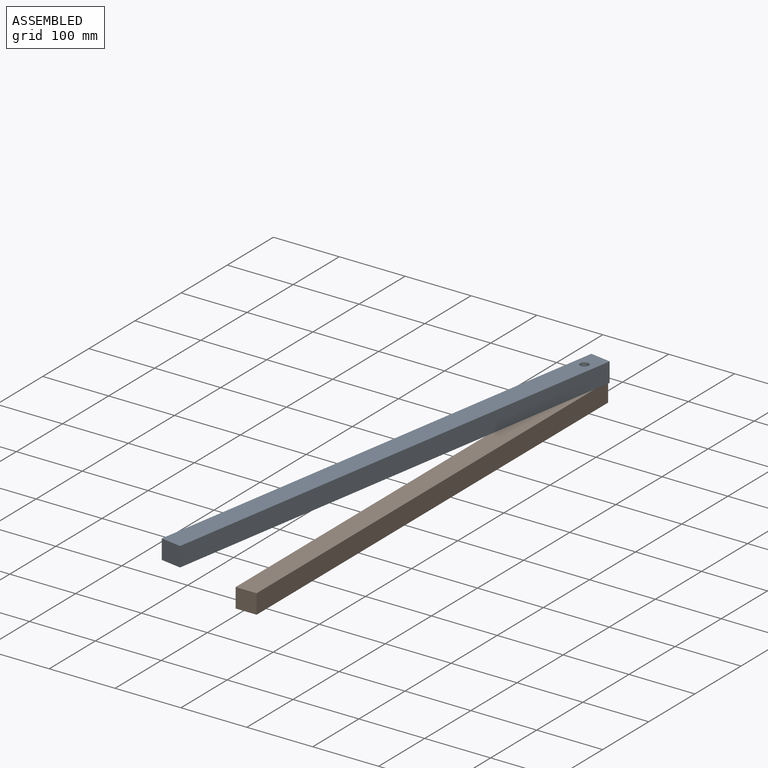
[diagram: assembled view]
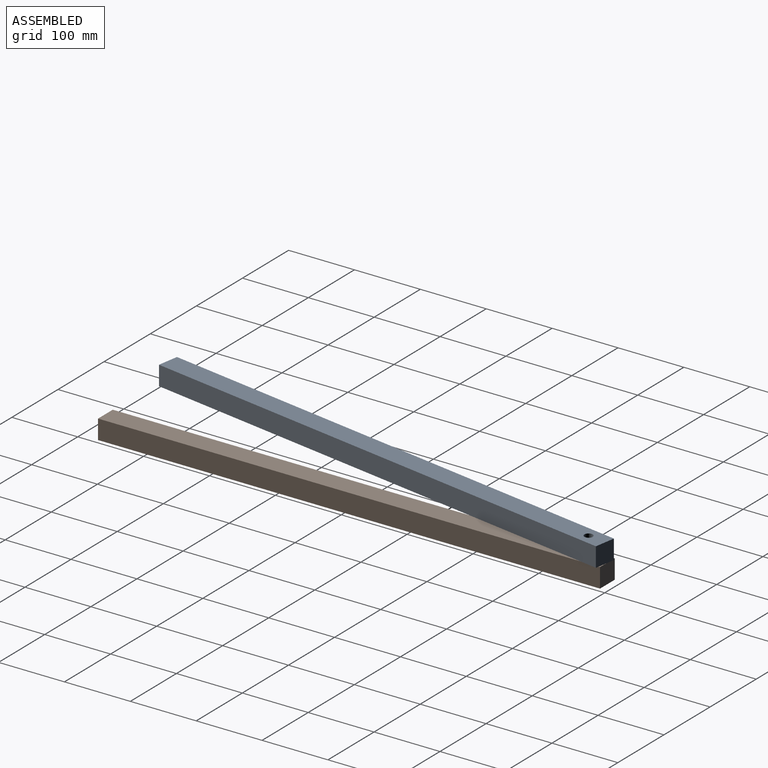
[diagram: assembled view, second angle]
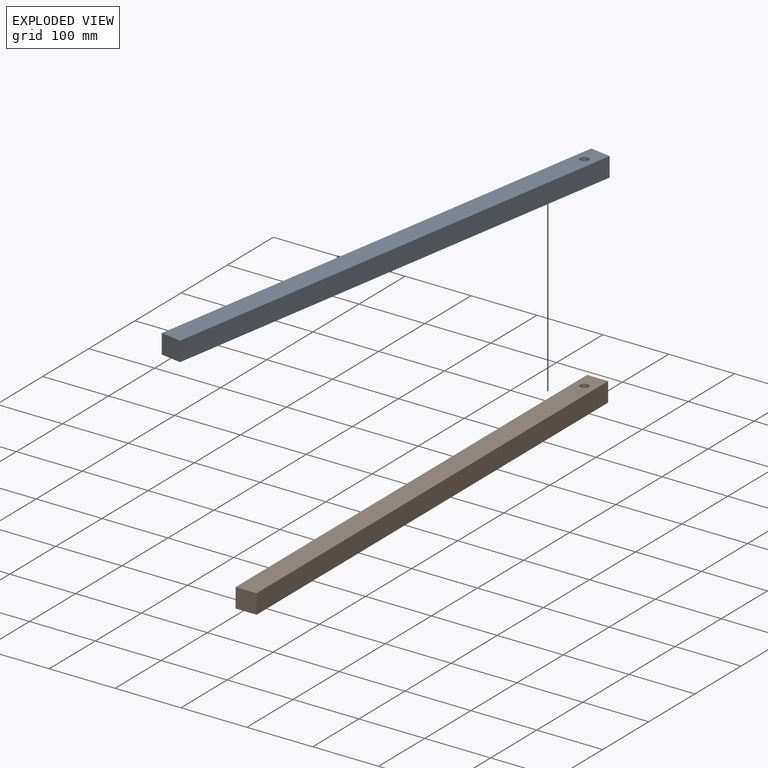
[diagram: exploded view]
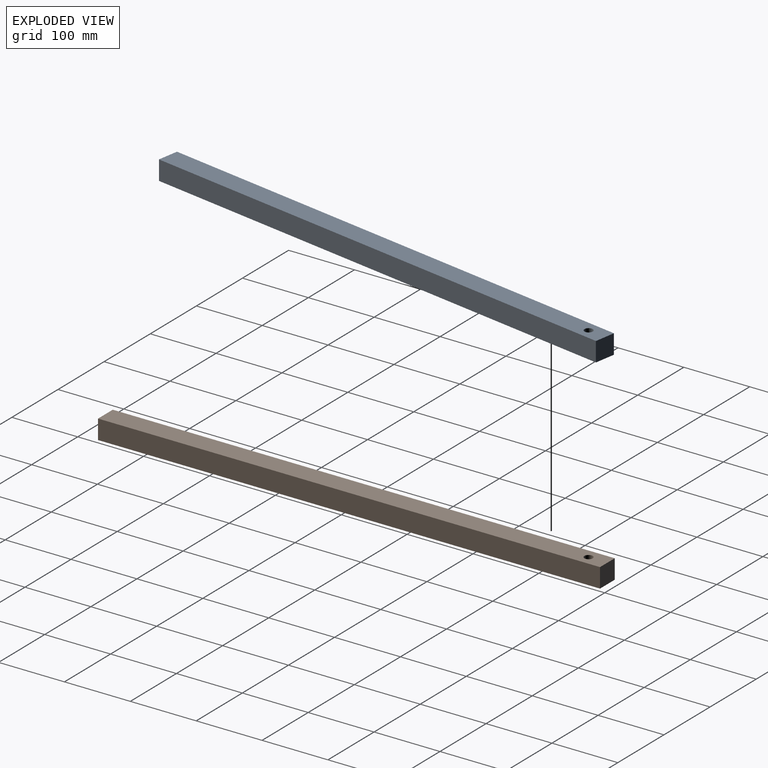
[diagram: exploded view, second angle]
ASSEMBLY  parts=2 mates=2
PART A: 7 faces, bbox 31.9x762x29.5 mm
  f0: plane 762x29.47mm, normal (-1,0,0), area 22454.7mm2, adj f1,f3,f4,f5
  f1: plane 762x31.9mm, normal (0,0,-1), area 24179.9mm2, adj f0,f2,f4,f5,f6
  f2: plane 762x29.47mm, normal (1,0,0), area 22454.7mm2, adj f1,f3,f4,f5
  f3: plane 762x31.9mm, normal (0,0,1), area 24179.9mm2, adj f0,f2,f4,f5,f6
  f4: plane 31.9x29.47mm, normal (0,-1,0), area 940mm2, adj f0,f1,f2,f3
  f5: plane 31.9x29.47mm, normal (0,1,0), area 940mm2, adj f0,f1,f2,f3
  f6: cylinder r=6.35mm len=29.47mm, axis (0,0,1), area 1175.7mm2, adj f1,f3
PART B: same geometry as A
PLACE A rot(axis=(0,0,-1),9.5deg) t=(-244.29,153.06,-128.51)mm
PLACE B t=(-249.23,150.82,-157.98)mm fixed
MATE planar B.f3 <-> A.f6  axis (0,0,1) through (-233.28,-232.02,-128.51)mm
MATE cylindrical B.f6 <-> A.f6  axis (0,0,1) through (-233.34,122.3,-128.51)mm
